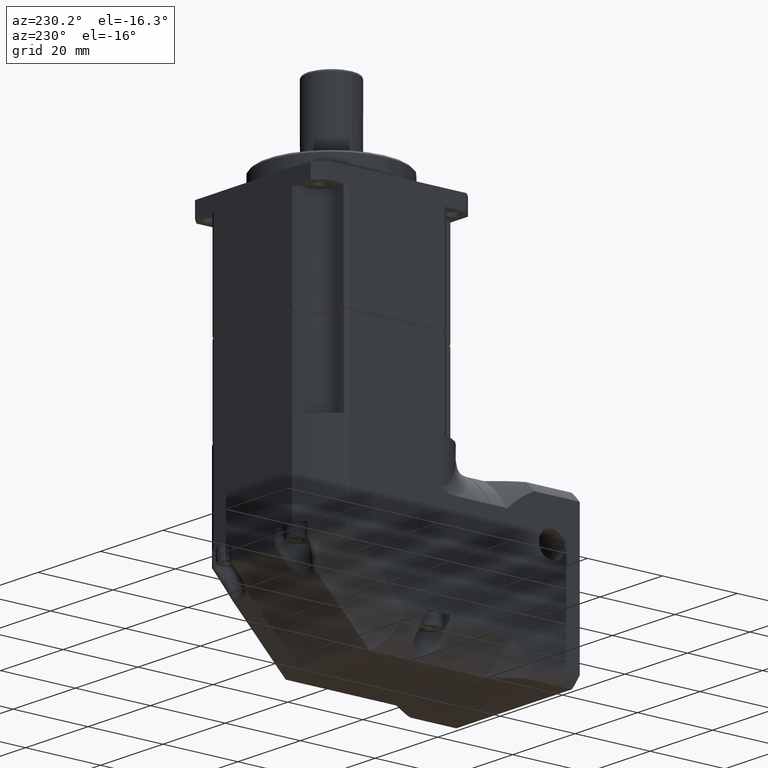
[diagram: clean part render]
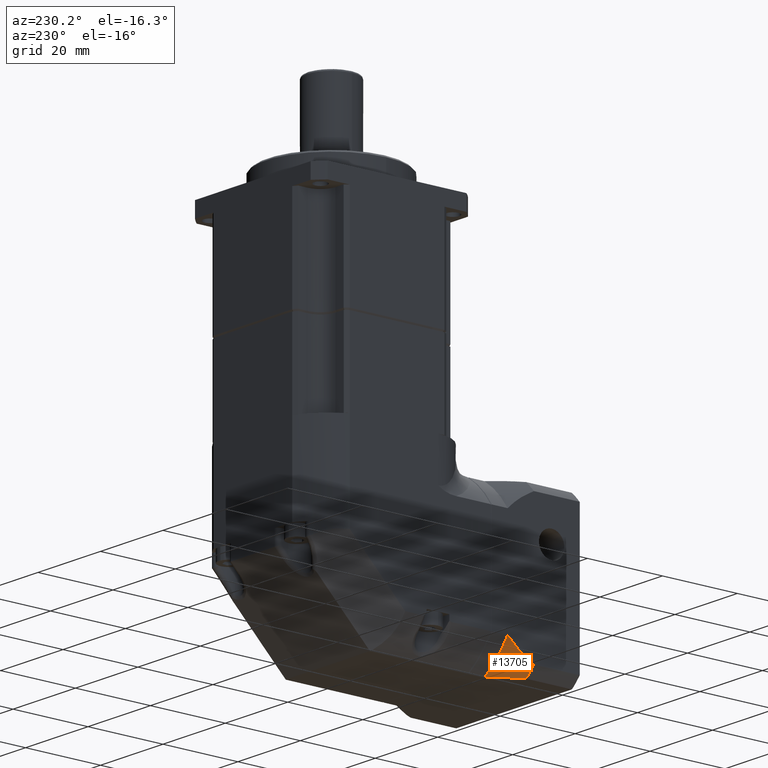
[diagram: same view with one face highlighted and labeled with its STEP entity id]
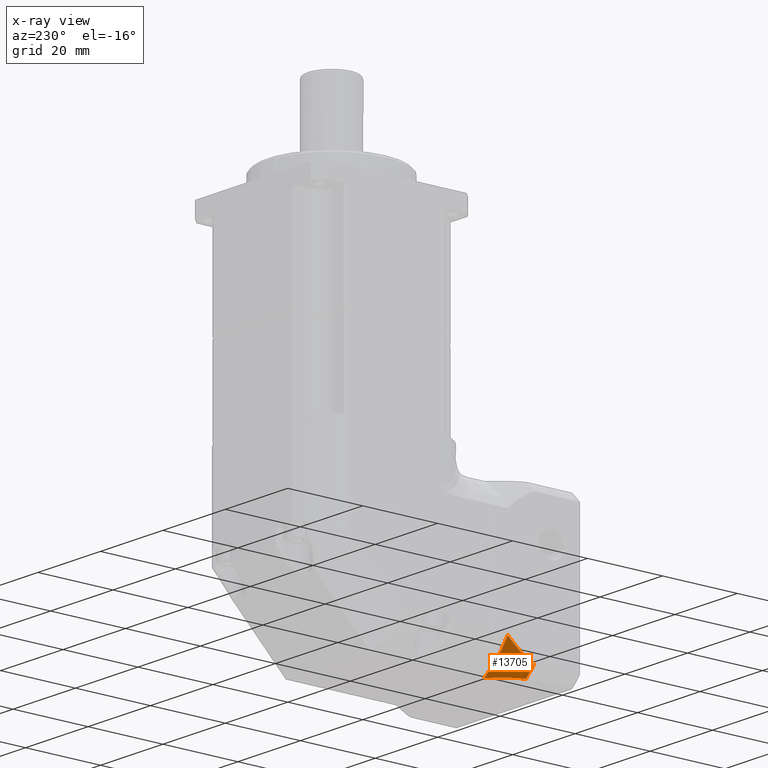
[diagram: x-ray of the same camera — body ghosted, the highlighted face saturated]
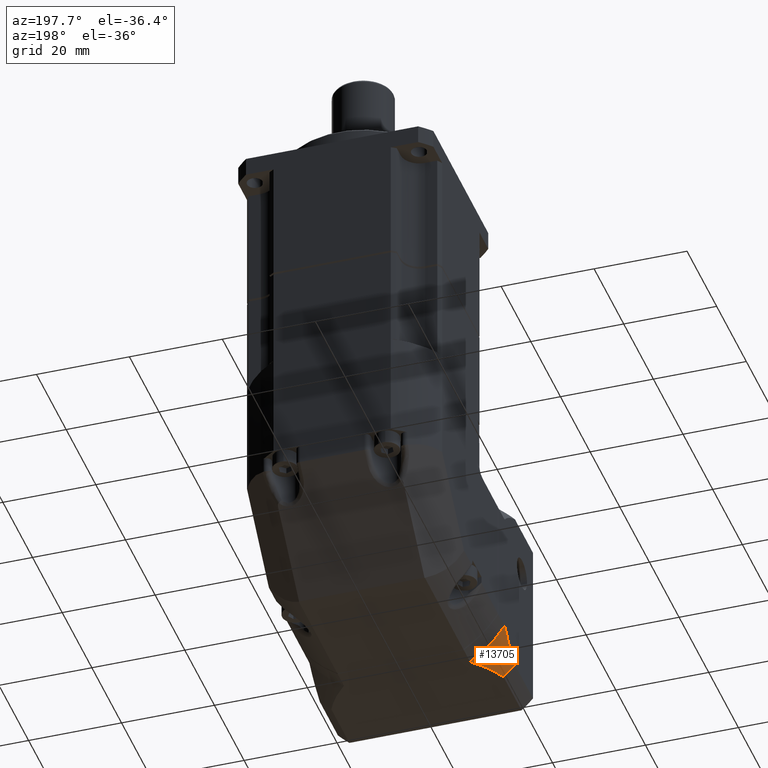
[diagram: same view with one face highlighted and labeled with its STEP entity id]
A machine part, auxiliary view. The second image highlights one B-rep face of the part: STEP entity #13705.
The next image is the same camera in x-ray: the body ghosted, the highlighted face saturated — about 0% of this face is hidden behind the body in this view.
A second angle (auxiliary view) of the same face is appended — the face is thin or edge-on in the first view.
In plain terms, the highlighted face is a freeform B-spline surface patch.
Its self-contained STEP definition (entity closure, byte-faithful):
#107 = EDGE_CURVE ( 'NONE', #2812, #3758, #6389, .T. ) ;
#168 = CARTESIAN_POINT ( 'NONE',  ( -20.99999999999999300, 17.37795769411635800, -15.51498416067993000 ) ) ;
#739 = CARTESIAN_POINT ( 'NONE',  ( -16.54140383489233900, 19.50000000000000700, -19.08801855072422900 ) ) ;
#741 = CARTESIAN_POINT ( 'NONE',  ( -18.52025917745213200, 12.50000000000001800, -20.99999999999999600 ) ) ;
#800 = CARTESIAN_POINT ( 'NONE',  ( -17.34947314184183400, 17.26569598911849100, -20.02049333190250700 ) ) ;
#1444 = EDGE_CURVE ( 'NONE', #2812, #11357, #18263, .T. ) ;
#1515 = AXIS2_PLACEMENT_3D ( 'NONE', #15527, #6560, #18522 ) ;
#1629 = CARTESIAN_POINT ( 'NONE',  ( -20.99999999999999600, 18.47770622072493300, -14.59452616767416300 ) ) ;
#2036 = CARTESIAN_POINT ( 'NONE',  ( -20.02049333190252900, 17.26569598911849100, -17.34947314184181300 ) ) ;
#2217 = CARTESIAN_POINT ( 'NONE',  ( -17.16255967902363400, 15.04158665960377000, -20.99999999999999300 ) ) ;
#2812 = VERTEX_POINT ( 'NONE', #11369 ) ;
#3177 = B_SPLINE_CURVE_WITH_KNOTS ( 'NONE', 3,
 ( #741, #13964, #2217, #5056, #3725, #4985 ),
 .UNSPECIFIED., .F., .F.,
 ( 4, 2, 4 ),
 ( 6.254634441385501500E-018, 0.004288296967971705000, 0.008576593935943408300 ),
 .UNSPECIFIED. ) ;
#3725 = CARTESIAN_POINT ( 'NONE',  ( -14.59452616767418900, 18.47770622072490800, -21.00000000000001100 ) ) ;
#3758 = VERTEX_POINT ( 'NONE', #13597 ) ;
#3775 = VERTEX_POINT ( 'NONE', #18115 ) ;
#3788 = CARTESIAN_POINT ( 'NONE',  ( -21.03442186653663600, 19.49999999999999600, -13.51122114172384400 ) ) ;
#4985 = CARTESIAN_POINT ( 'NONE',  ( -13.56465996625056100, 19.50000000000000000, -21.00000000000000400 ) ) ;
#5056 = CARTESIAN_POINT ( 'NONE',  ( -15.51498416067993000, 17.37795769411634700, -20.99999999999998200 ) ) ;
#5758 = EDGE_LOOP ( 'NONE', ( #15510, #17139, #15531, #8581 ) ) ;
#6097 = CARTESIAN_POINT ( 'NONE',  ( -20.99999999999999600, 12.50000000000001800, -18.52025917745213200 ) ) ;
#6141 = AXIS2_PLACEMENT_3D ( 'NONE', #16207, #7034, #15494 ) ;
#6389 = B_SPLINE_CURVE_WITH_KNOTS ( 'NONE', 3,
 ( #12251, #1629, #168, #9122, #18206, #6097 ),
 .UNSPECIFIED., .F., .F.,
 ( 4, 2, 4 ),
 ( 4.906538933386797400E-018, 0.004288296967971721500, 0.008576593935943437700 ),
 .UNSPECIFIED. ) ;
#6560 = DIRECTION ( 'NONE',  ( 0.0000000000000000000, -1.000000000000000000, 0.0000000000000000000 ) ) ;
#6756 = CARTESIAN_POINT ( 'NONE',  ( -18.01313868109682700, 14.92527654771987100, -20.78633281271208600 ) ) ;
#7034 = DIRECTION ( 'NONE',  ( -6.402496715553833200E-015, -1.000000000000000000, -6.402496715553826100E-015 ) ) ;
#7573 = CIRCLE ( 'NONE', #1515, 28.00000000000000400 ) ;
#8059 = CARTESIAN_POINT ( 'NONE',  ( -19.08801855072424300, 19.50000000000000700, -16.54140383489232100 ) ) ;
#8324 = CARTESIAN_POINT ( 'NONE',  ( -23.55855249052101600, 12.50000000000001800, -15.13256767873071400 ) ) ;
#8581 = ORIENTED_EDGE ( 'NONE', *, *, #1444, .T. ) ;
#9122 = CARTESIAN_POINT ( 'NONE',  ( -20.99999999999999300, 15.04158665960376200, -17.16255967902362700 ) ) ;
#9593 = CARTESIAN_POINT ( 'NONE',  ( -22.06198100658503900, 17.26569598911847700, -14.17126204351258600 ) ) ;
#10416 = CARTESIAN_POINT ( 'NONE',  ( -13.56465996625056100, 19.50000000000000000, -21.00000000000000400 ) ) ;
#11082 = CARTESIAN_POINT ( 'NONE',  ( -14.71335218014907300, 14.92527654771986400, -22.90591306158541600 ) ) ;
#11148 = CARTESIAN_POINT ( 'NONE',  ( -14.17126204351260900, 17.26569598911847700, -22.06198100658503200 ) ) ;
#11261 = CARTESIAN_POINT ( 'NONE',  ( -15.13256767873073700, 12.50000000000001800, -23.55855249052100600 ) ) ;
#11357 = VERTEX_POINT ( 'NONE', #10416 ) ;
#11369 = CARTESIAN_POINT ( 'NONE',  ( -21.00000000000000000, 19.50000000000000000, -13.56465996625053400 ) ) ;
#12251 = CARTESIAN_POINT ( 'NONE',  ( -21.00000000000000000, 19.50000000000000000, -13.56465996625053400 ) ) ;
#13597 = CARTESIAN_POINT ( 'NONE',  ( -20.99999999999999600, 12.50000000000001800, -18.52025917745213200 ) ) ;
#13705 = ADVANCED_FACE ( 'NONE', ( #17003 ), #17871, .T. ) ;
#13964 = CARTESIAN_POINT ( 'NONE',  ( -17.88936398270010700, 13.80474240869710200, -20.99999999999998900 ) ) ;
#14810 = EDGE_CURVE ( 'NONE', #3758, #3775, #7573, .T. ) ;
#15494 = DIRECTION ( 'NONE',  ( -1.000000000000000000, 6.383782391594643800E-015, 8.881784197001251300E-016 ) ) ;
#15510 = ORIENTED_EDGE ( 'NONE', *, *, #16241, .F. ) ;
#15527 = CARTESIAN_POINT ( 'NONE',  ( 0.0000000000000000000, 12.50000000000001100, 0.0000000000000000000 ) ) ;
#15529 = CARTESIAN_POINT ( 'NONE',  ( -20.78633281271210000, 14.92527654771987100, -18.01313868109680900 ) ) ;
#15531 = ORIENTED_EDGE ( 'NONE', *, *, #107, .F. ) ;
#16207 = CARTESIAN_POINT ( 'NONE',  ( 2.742346290036623900E-014, 19.49999999999977600, 1.701512204450524800E-014 ) ) ;
#16241 = EDGE_CURVE ( 'NONE', #3775, #11357, #3177, .T. ) ;
#17003 = FACE_OUTER_BOUND ( 'NONE', #5758, .T. ) ;
#17099 = CARTESIAN_POINT ( 'NONE',  ( -18.52637229507942300, 12.50000000000002700, -21.37858077681113000 ) ) ;
#17139 = ORIENTED_EDGE ( 'NONE', *, *, #14810, .F. ) ;
#17159 = CARTESIAN_POINT ( 'NONE',  ( -13.51122114172386500, 19.49999999999999600, -21.03442186653662600 ) ) ;
#17871 =( BOUNDED_SURFACE ( )  B_SPLINE_SURFACE ( 3, 3, ( 
 ( #17159, #739, #8059, #3788 ),
 ( #11148, #800, #2036, #9593 ),
 ( #11082, #6756, #15529, #18588 ),
 ( #11261, #17099, #18779, #8324 ) ),
 .UNSPECIFIED., .F., .F., .F. ) 
 B_SPLINE_SURFACE_WITH_KNOTS ( ( 4, 4 ),
 ( 4, 4 ),
 ( 0.0000000000000000000, 1.000000000000000000 ),
 ( 0.0000000000000000000, 1.000000000000000000 ),
 .UNSPECIFIED. ) 
 GEOMETRIC_REPRESENTATION_ITEM ( )  RATIONAL_B_SPLINE_SURFACE ( (
 ( 1.000000000000000000, 0.9847322248424168500, 0.9847322248424168500, 1.000000000000000000),
 ( 0.9969722914021517100, 0.9817507426186832300, 0.9817507426186832300, 0.9969722914021517100),
 ( 0.9969722914021517100, 0.9817507426186832300, 0.9817507426186832300, 0.9969722914021517100),
 ( 1.000000000000000000, 0.9847322248424168500, 0.9847322248424168500, 1.000000000000000000) ) ) 
 REPRESENTATION_ITEM ( '' )  SURFACE ( )  );
#18115 = CARTESIAN_POINT ( 'NONE',  ( -18.52025917745213200, 12.50000000000001800, -20.99999999999999600 ) ) ;
#18206 = CARTESIAN_POINT ( 'NONE',  ( -20.99999999999999300, 13.80474240869710700, -17.88936398270010000 ) ) ;
#18263 = CIRCLE ( 'NONE', #6141, 25.00000000000002500 ) ;
#18522 = DIRECTION ( 'NONE',  ( -8.881784197001250700E-015, 0.0000000000000000000, 1.000000000000000000 ) ) ;
#18588 = CARTESIAN_POINT ( 'NONE',  ( -22.90591306158542700, 14.92527654771986400, -14.71335218014905000 ) ) ;
#18779 = CARTESIAN_POINT ( 'NONE',  ( -21.37858077681114500, 12.50000000000002700, -18.52637229507940100 ) ) ;